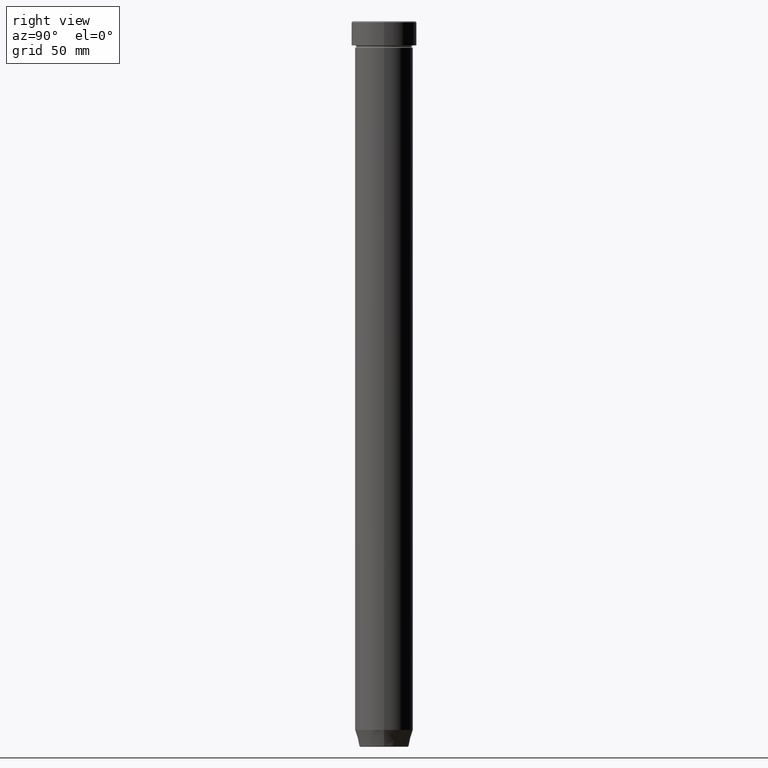
[diagram: clean part render]
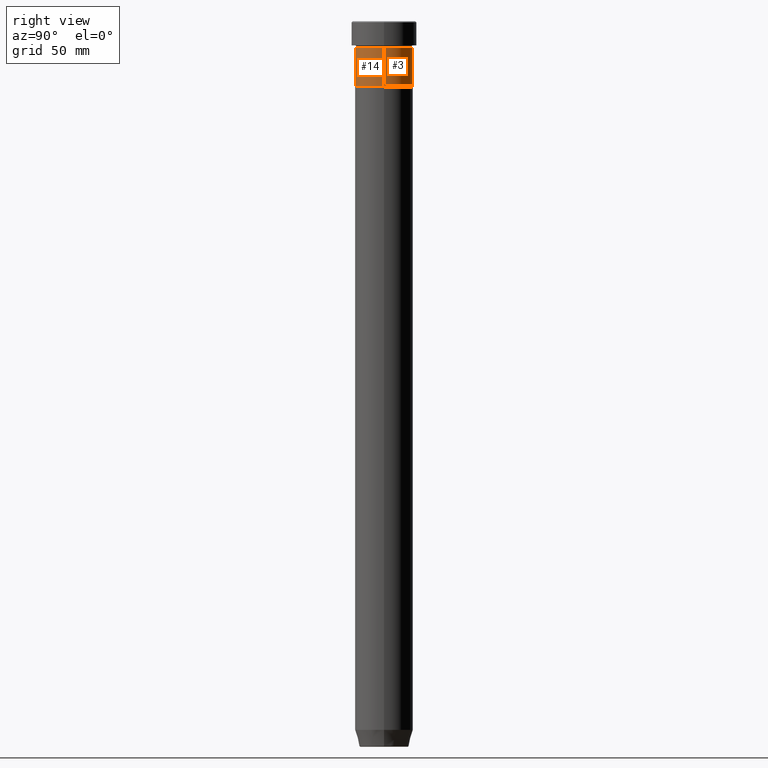
[diagram: same view with one multi-face feature highlighted, each face labeled with its STEP entity id]
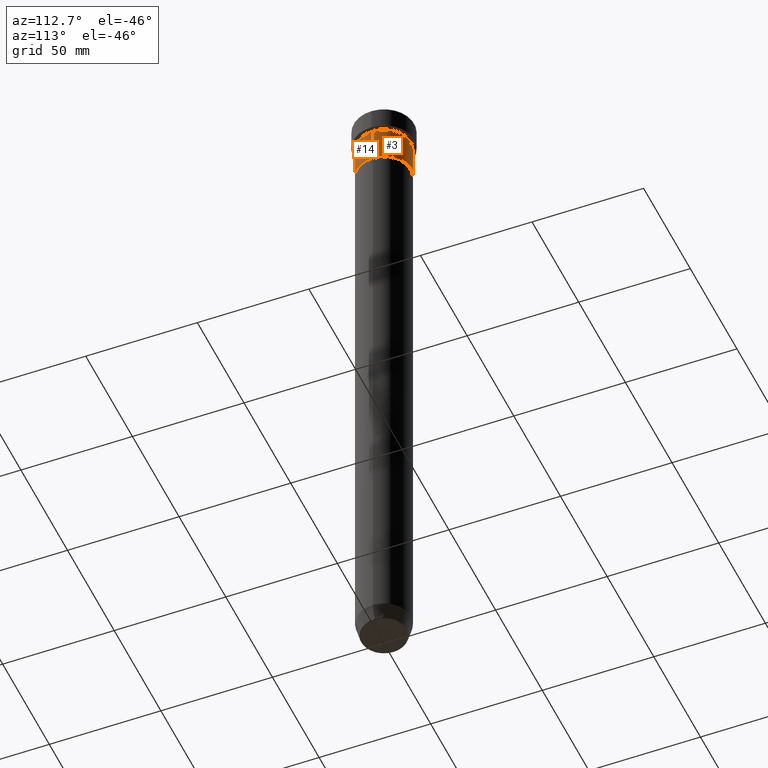
[diagram: same view with one multi-face feature highlighted, each face labeled with its STEP entity id]
A machine part, right view. The highlighted faces form ONE feature: a constant-radius fillet chain: 2 tangent blend faces with common blend radius 12 mm. The faces share edges in the B-rep.
A second angle (auxiliary view) of the same feature is appended — it is thin or edge-on in the first view.
Their STEP definitions:
[1] entity #14 (Cylinder):
#2 = DIRECTION ( 'NONE',  ( 1.000000000000000000, 0.000000000000000000, 0.000000000000000000 ) ) ;
#14 = ADVANCED_FACE ( 'NONE', ( #472 ), #234, .T. ) ;
#25 = ORIENTED_EDGE ( 'NONE', *, *, #142, .F. ) ;
#64 = DIRECTION ( 'NONE',  ( -0.000000000000000000, -0.000000000000000000, 1.000000000000000000 ) ) ;
#72 = EDGE_LOOP ( 'NONE', ( #554, #183, #76, #25 ) ) ;
#76 = ORIENTED_EDGE ( 'NONE', *, *, #171, .T. ) ;
#78 = CARTESIAN_POINT ( 'NONE',  ( -12.00000000000000000, 1.469576158976823947E-15, 0.000000000000000000 ) ) ;
#84 = CARTESIAN_POINT ( 'NONE',  ( 12.00000000000000000, 0.000000000000000000, -11.00000000000000000 ) ) ;
#104 = LINE ( 'NONE', #78, #177 ) ;
#107 = LINE ( 'NONE', #253, #439 ) ;
#117 = CIRCLE ( 'NONE', #477, 12.00000000000000000 ) ;
#119 = CARTESIAN_POINT ( 'NONE',  ( -12.00000000000000000, 1.469576158976823947E-15, -27.00000000000000000 ) ) ;
#123 = DIRECTION ( 'NONE',  ( -0.000000000000000000, -0.000000000000000000, 1.000000000000000000 ) ) ;
#142 = EDGE_CURVE ( 'NONE', #407, #364, #227, .T. ) ;
#151 = DIRECTION ( 'NONE',  ( -0.000000000000000000, -0.000000000000000000, 1.000000000000000000 ) ) ;
#171 = EDGE_CURVE ( 'NONE', #321, #364, #107, .T. ) ;
#177 = VECTOR ( 'NONE', #123, 1000.000000000000000 ) ;
#179 = EDGE_CURVE ( 'NONE', #446, #321, #117, .T. ) ;
#183 = ORIENTED_EDGE ( 'NONE', *, *, #179, .T. ) ;
#227 = CIRCLE ( 'NONE', #428, 12.00000000000000000 ) ;
#234 = CYLINDRICAL_SURFACE ( 'NONE', #246, 12.00000000000000000 ) ;
#236 = DIRECTION ( 'NONE',  ( -0.000000000000000000, -0.000000000000000000, 1.000000000000000000 ) ) ;
#241 = DIRECTION ( 'NONE',  ( 1.000000000000000000, 0.000000000000000000, 0.000000000000000000 ) ) ;
#246 = AXIS2_PLACEMENT_3D ( 'NONE', #383, #236, #241 ) ;
#250 = DIRECTION ( 'NONE',  ( 1.000000000000000000, 0.000000000000000000, 0.000000000000000000 ) ) ;
#253 = CARTESIAN_POINT ( 'NONE',  ( 12.00000000000000000, 0.000000000000000000, 0.000000000000000000 ) ) ;
#290 = EDGE_CURVE ( 'NONE', #446, #407, #104, .T. ) ;
#300 = CARTESIAN_POINT ( 'NONE',  ( 0.000000000000000000, 0.000000000000000000, -27.00000000000000000 ) ) ;
#321 = VERTEX_POINT ( 'NONE', #579 ) ;
#364 = VERTEX_POINT ( 'NONE', #84 ) ;
#383 = CARTESIAN_POINT ( 'NONE',  ( 0.000000000000000000, 0.000000000000000000, 0.000000000000000000 ) ) ;
#397 = CARTESIAN_POINT ( 'NONE',  ( -12.00000000000000000, 1.469576158976823947E-15, -11.00000000000000000 ) ) ;
#407 = VERTEX_POINT ( 'NONE', #397 ) ;
#428 = AXIS2_PLACEMENT_3D ( 'NONE', #560, #151, #2 ) ;
#439 = VECTOR ( 'NONE', #519, 1000.000000000000000 ) ;
#446 = VERTEX_POINT ( 'NONE', #119 ) ;
#472 = FACE_OUTER_BOUND ( 'NONE', #72, .T. ) ;
#477 = AXIS2_PLACEMENT_3D ( 'NONE', #300, #64, #250 ) ;
#519 = DIRECTION ( 'NONE',  ( -0.000000000000000000, -0.000000000000000000, 1.000000000000000000 ) ) ;
#554 = ORIENTED_EDGE ( 'NONE', *, *, #290, .F. ) ;
#560 = CARTESIAN_POINT ( 'NONE',  ( 0.000000000000000000, 0.000000000000000000, -11.00000000000000000 ) ) ;
#579 = CARTESIAN_POINT ( 'NONE',  ( 12.00000000000000000, 0.000000000000000000, -27.00000000000000000 ) ) ;
[2] entity #3 (Cylinder):
#3 = ADVANCED_FACE ( 'NONE', ( #332 ), #423, .T. ) ;
#4 = CARTESIAN_POINT ( 'NONE',  ( 0.000000000000000000, 0.000000000000000000, -27.00000000000000000 ) ) ;
#43 = ORIENTED_EDGE ( 'NONE', *, *, #515, .T. ) ;
#77 = EDGE_CURVE ( 'NONE', #364, #407, #474, .T. ) ;
#78 = CARTESIAN_POINT ( 'NONE',  ( -12.00000000000000000, 1.469576158976823947E-15, 0.000000000000000000 ) ) ;
#84 = CARTESIAN_POINT ( 'NONE',  ( 12.00000000000000000, 0.000000000000000000, -11.00000000000000000 ) ) ;
#99 = DIRECTION ( 'NONE',  ( -0.000000000000000000, -0.000000000000000000, 1.000000000000000000 ) ) ;
#104 = LINE ( 'NONE', #78, #177 ) ;
#107 = LINE ( 'NONE', #253, #439 ) ;
#119 = CARTESIAN_POINT ( 'NONE',  ( -12.00000000000000000, 1.469576158976823947E-15, -27.00000000000000000 ) ) ;
#123 = DIRECTION ( 'NONE',  ( -0.000000000000000000, -0.000000000000000000, 1.000000000000000000 ) ) ;
#137 = DIRECTION ( 'NONE',  ( -0.000000000000000000, -0.000000000000000000, 1.000000000000000000 ) ) ;
#156 = AXIS2_PLACEMENT_3D ( 'NONE', #186, #99, #470 ) ;
#171 = EDGE_CURVE ( 'NONE', #321, #364, #107, .T. ) ;
#177 = VECTOR ( 'NONE', #123, 1000.000000000000000 ) ;
#186 = CARTESIAN_POINT ( 'NONE',  ( 0.000000000000000000, 0.000000000000000000, 0.000000000000000000 ) ) ;
#192 = ORIENTED_EDGE ( 'NONE', *, *, #77, .F. ) ;
#253 = CARTESIAN_POINT ( 'NONE',  ( 12.00000000000000000, 0.000000000000000000, 0.000000000000000000 ) ) ;
#259 = CIRCLE ( 'NONE', #449, 12.00000000000000000 ) ;
#268 = ORIENTED_EDGE ( 'NONE', *, *, #290, .T. ) ;
#290 = EDGE_CURVE ( 'NONE', #446, #407, #104, .T. ) ;
#294 = AXIS2_PLACEMENT_3D ( 'NONE', #371, #137, #507 ) ;
#310 = EDGE_LOOP ( 'NONE', ( #43, #268, #192, #343 ) ) ;
#321 = VERTEX_POINT ( 'NONE', #579 ) ;
#332 = FACE_OUTER_BOUND ( 'NONE', #310, .T. ) ;
#343 = ORIENTED_EDGE ( 'NONE', *, *, #171, .F. ) ;
#364 = VERTEX_POINT ( 'NONE', #84 ) ;
#369 = DIRECTION ( 'NONE',  ( -0.000000000000000000, -0.000000000000000000, 1.000000000000000000 ) ) ;
#371 = CARTESIAN_POINT ( 'NONE',  ( 0.000000000000000000, 0.000000000000000000, -11.00000000000000000 ) ) ;
#397 = CARTESIAN_POINT ( 'NONE',  ( -12.00000000000000000, 1.469576158976823947E-15, -11.00000000000000000 ) ) ;
#407 = VERTEX_POINT ( 'NONE', #397 ) ;
#415 = DIRECTION ( 'NONE',  ( 1.000000000000000000, 0.000000000000000000, 0.000000000000000000 ) ) ;
#423 = CYLINDRICAL_SURFACE ( 'NONE', #156, 12.00000000000000000 ) ;
#439 = VECTOR ( 'NONE', #519, 1000.000000000000000 ) ;
#446 = VERTEX_POINT ( 'NONE', #119 ) ;
#449 = AXIS2_PLACEMENT_3D ( 'NONE', #4, #369, #415 ) ;
#470 = DIRECTION ( 'NONE',  ( 1.000000000000000000, 0.000000000000000000, 0.000000000000000000 ) ) ;
#474 = CIRCLE ( 'NONE', #294, 12.00000000000000000 ) ;
#507 = DIRECTION ( 'NONE',  ( 1.000000000000000000, 0.000000000000000000, 0.000000000000000000 ) ) ;
#515 = EDGE_CURVE ( 'NONE', #321, #446, #259, .T. ) ;
#519 = DIRECTION ( 'NONE',  ( -0.000000000000000000, -0.000000000000000000, 1.000000000000000000 ) ) ;
#579 = CARTESIAN_POINT ( 'NONE',  ( 12.00000000000000000, 0.000000000000000000, -27.00000000000000000 ) ) ;